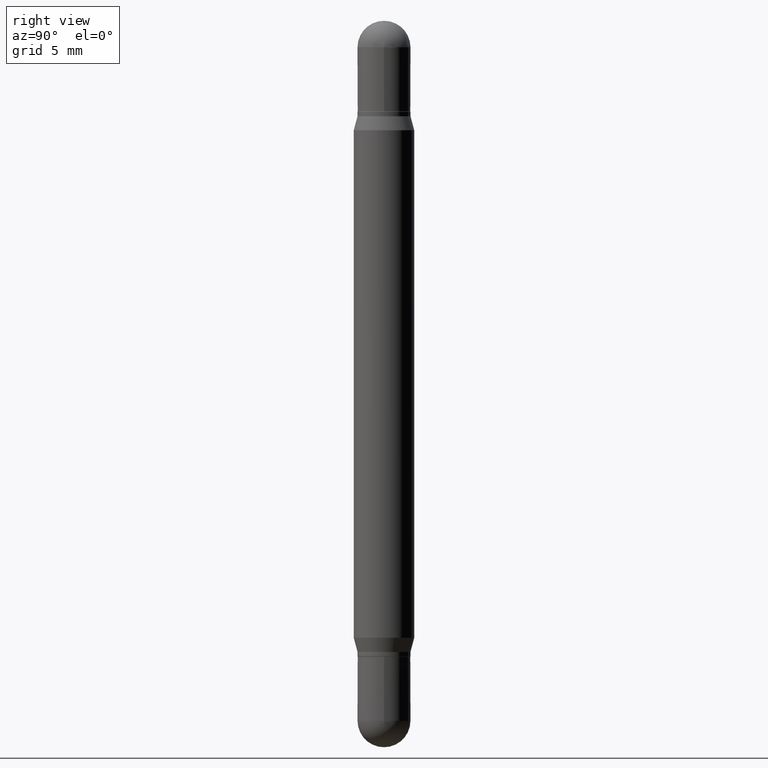
[diagram: clean part render]
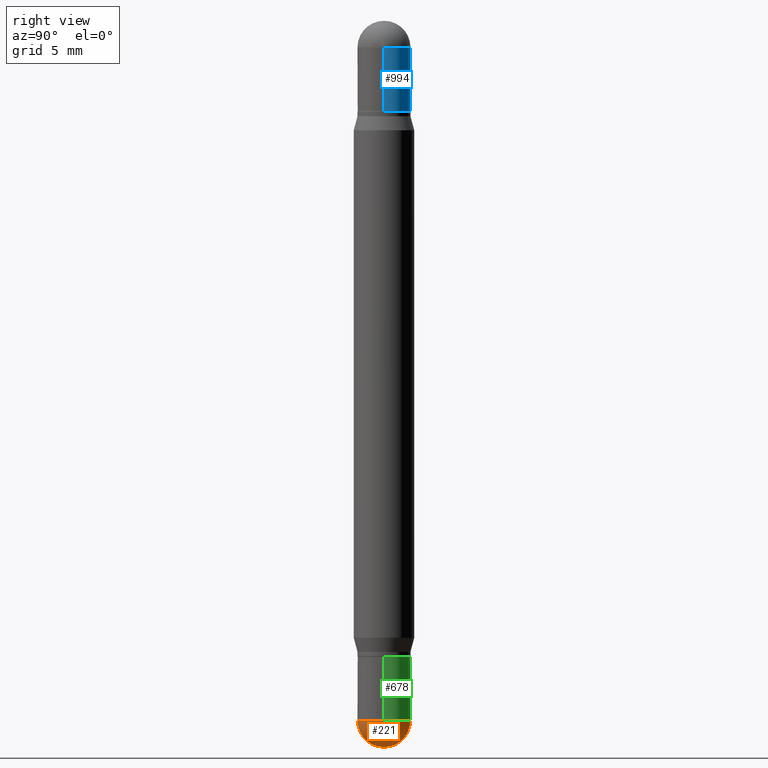
[diagram: same view with three faces highlighted in distinct colors, each labeled with its STEP entity id]
A machine part, right view with three faces highlighted in distinct colors.
Their STEP definitions:

[orange] entity #221 — the highlighted spherical surface has radius 1.3894 mm.
#6 = FACE_OUTER_BOUND ( 'NONE', #480, .T. ) ;
#76 = ORIENTED_EDGE ( 'NONE', *, *, #982, .T. ) ;
#151 = AXIS2_PLACEMENT_3D ( 'NONE', #357, #594, #846 ) ;
#159 = ORIENTED_EDGE ( 'NONE', *, *, #283, .F. ) ;
#160 = DIRECTION ( 'NONE',  ( -2.445468806185136597E-29, 3.491481338843145583E-15, 1.000000000000000000 ) ) ;
#171 = CARTESIAN_POINT ( 'NONE',  ( 3.529758305977566399E-29, -5.052936797021334001E-15, -1.445300000000000029 ) ) ;
#206 = DIRECTION ( 'NONE',  ( 1.000000000000000000, -6.982962677686259611E-15, 0.000000000000000000 ) ) ;
#221 = ADVANCED_FACE ( 'NONE', ( #6 ), #936, .T. ) ;
#226 = VERTEX_POINT ( 'NONE', #842 ) ;
#248 = DIRECTION ( 'NONE',  ( 1.000000000000000000, -6.982962677686265922E-15, 4.883557194083113462E-29 ) ) ;
#251 = EDGE_CURVE ( 'NONE', #638, #226, #958, .T. ) ;
#252 = VERTEX_POINT ( 'NONE', #326 ) ;
#283 = EDGE_CURVE ( 'NONE', #406, #252, #466, .T. ) ;
#313 = EDGE_CURVE ( 'NONE', #252, #638, #637, .T. ) ;
#326 = CARTESIAN_POINT ( 'NONE',  ( -3.819680584694040760E-16, -0.05470000000000515422, -1.445299999999999807 ) ) ;
#335 = ORIENTED_EDGE ( 'NONE', *, *, #251, .F. ) ;
#340 = ORIENTED_EDGE ( 'NONE', *, *, #313, .F. ) ;
#344 = AXIS2_PLACEMENT_3D ( 'NONE', #504, #160, #485 ) ;
#357 = CARTESIAN_POINT ( 'NONE',  ( 3.529758305977566399E-29, -5.052936797021334001E-15, -1.445300000000000029 ) ) ;
#369 = CARTESIAN_POINT ( 'NONE',  ( 3.529758305977566399E-29, -5.052936797021334001E-15, -1.445300000000000029 ) ) ;
#371 = DIRECTION ( 'NONE',  ( -2.445468806185136597E-29, 3.491481338843145583E-15, 1.000000000000000000 ) ) ;
#406 = VERTEX_POINT ( 'NONE', #1067 ) ;
#435 = CARTESIAN_POINT ( 'NONE',  ( 3.534436065579377749E-29, -5.046237979029997798E-15, -1.445300000000000029 ) ) ;
#451 = DIRECTION ( 'NONE',  ( -6.982962677686266711E-15, -1.000000000000000000, 0.000000000000000000 ) ) ;
#466 = CIRCLE ( 'NONE', #691, 0.05470000000000019291 ) ;
#480 = EDGE_LOOP ( 'NONE', ( #159, #76, #335, #340 ) ) ;
#483 = CIRCLE ( 'NONE', #151, 0.05470000000000019291 ) ;
#485 = DIRECTION ( 'NONE',  ( 1.000000000000000000, -6.982962677686259611E-15, 0.000000000000000000 ) ) ;
#504 = CARTESIAN_POINT ( 'NONE',  ( 3.534436065579377749E-29, -5.046237979029997798E-15, -1.445300000000000029 ) ) ;
#594 = DIRECTION ( 'NONE',  ( 1.000000000000000000, -7.105427357601001070E-15, 4.926315508542082329E-29 ) ) ;
#637 = CIRCLE ( 'NONE', #831, 0.05470000000000000556 ) ;
#638 = VERTEX_POINT ( 'NONE', #1089 ) ;
#691 = AXIS2_PLACEMENT_3D ( 'NONE', #369, #790, #451 ) ;
#706 = AXIS2_PLACEMENT_3D ( 'NONE', #171, #248, #744 ) ;
#744 = DIRECTION ( 'NONE',  ( -6.982962677686265922E-15, -1.000000000000000000, 4.994237648380719522E-15 ) ) ;
#790 = DIRECTION ( 'NONE',  ( -1.000000000000000000, 6.982962677686265922E-15, -4.883557194083112340E-29 ) ) ;
#831 = AXIS2_PLACEMENT_3D ( 'NONE', #435, #371, #206 ) ;
#842 = CARTESIAN_POINT ( 'NONE',  ( 3.886668764608108330E-16, 0.05469999999999505119, -1.445300000000000251 ) ) ;
#846 = DIRECTION ( 'NONE',  ( 7.105427357601001070E-15, 1.000000000000000000, 0.000000000000000000 ) ) ;
#936 = SPHERICAL_SURFACE ( 'NONE', #706, 0.05470000000000019291 ) ;
#958 = CIRCLE ( 'NONE', #344, 0.05470000000000000556 ) ;
#982 = EDGE_CURVE ( 'NONE', #406, #226, #483, .T. ) ;
#1067 = CARTESIAN_POINT ( 'NONE',  ( 3.661186569874987869E-29, -5.247270235251722876E-15, -1.500000000000000222 ) ) ;
#1089 = CARTESIAN_POINT ( 'NONE',  ( 0.05470000000000000556, -5.197244546934962984E-15, -1.445300000000000029 ) ) ;

[blue] entity #994 — the highlighted cylindrical surface (edge-blend (fillet) strip) has radius 1.3894 mm, axis along (-0, -0, -1).
#11 = AXIS2_PLACEMENT_3D ( 'NONE', #1057, #265, #949 ) ;
#24 = AXIS2_PLACEMENT_3D ( 'NONE', #415, #832, #850 ) ;
#30 = DIRECTION ( 'NONE',  ( 2.445468806185136597E-29, 3.479614466977828254E-15, 1.000000000000000000 ) ) ;
#50 = VERTEX_POINT ( 'NONE', #360 ) ;
#73 = VECTOR ( 'NONE', #137, 39.37007874015748143 ) ;
#85 = ORIENTED_EDGE ( 'NONE', *, *, #364, .F. ) ;
#105 = CARTESIAN_POINT ( 'NONE',  ( -0.05469999999999999862, -4.853052613887629372E-15, -1.500000000000000444 ) ) ;
#110 = AXIS2_PLACEMENT_3D ( 'NONE', #524, #30, #965 ) ;
#137 = DIRECTION ( 'NONE',  ( -2.445468806185136877E-29, -3.479614466977828648E-15, -1.000000000000000000 ) ) ;
#207 = EDGE_CURVE ( 'NONE', #50, #572, #367, .T. ) ;
#263 = DIRECTION ( 'NONE',  ( -2.445468806185136877E-29, -3.479614466977828648E-15, -1.000000000000000000 ) ) ;
#265 = DIRECTION ( 'NONE',  ( 2.445468806185136597E-29, 3.479614466977828254E-15, 1.000000000000000000 ) ) ;
#280 = EDGE_LOOP ( 'NONE', ( #660, #495, #85, #819, #1081 ) ) ;
#289 = VECTOR ( 'NONE', #263, 39.37007874015748143 ) ;
#292 = LINE ( 'NONE', #387, #73 ) ;
#295 = EDGE_CURVE ( 'NONE', #352, #740, #915, .T. ) ;
#298 = VERTEX_POINT ( 'NONE', #519 ) ;
#336 = DIRECTION ( 'NONE',  ( -2.445468806185136597E-29, -3.479614466977828254E-15, -1.000000000000000000 ) ) ;
#352 = VERTEX_POINT ( 'NONE', #626 ) ;
#360 = CARTESIAN_POINT ( 'NONE',  ( 3.752692404781387717E-16, 0.05469999999999989454, -0.05470000000000056067 ) ) ;
#364 = EDGE_CURVE ( 'NONE', #298, #50, #920, .T. ) ;
#367 = CIRCLE ( 'NONE', #24, 0.05470000000000000556 ) ;
#387 = CARTESIAN_POINT ( 'NONE',  ( 0.05469999999999999862, -5.610289912835170741E-15, -1.500000000000000444 ) ) ;
#415 = CARTESIAN_POINT ( 'NONE',  ( 3.534436065579377749E-29, -1.992350652426753183E-16, -0.05470000000000037332 ) ) ;
#432 = CARTESIAN_POINT ( 'NONE',  ( 0.000000000000000000, -5.228321854365732350E-15, -1.500000000000000444 ) ) ;
#441 = LINE ( 'NONE', #105, #289 ) ;
#461 = EDGE_CURVE ( 'NONE', #298, #352, #292, .T. ) ;
#495 = ORIENTED_EDGE ( 'NONE', *, *, #207, .F. ) ;
#519 = CARTESIAN_POINT ( 'NONE',  ( 0.05470000000000000556, -8.113796207026979199E-16, -0.05470000000000037332 ) ) ;
#524 = CARTESIAN_POINT ( 'NONE',  ( 3.210900542521084585E-29, -6.595880592238425060E-16, -0.1870000000000002216 ) ) ;
#572 = VERTEX_POINT ( 'NONE', #590 ) ;
#590 = CARTESIAN_POINT ( 'NONE',  ( -0.05470000000000000556, -5.414232175515625545E-17, -0.05470000000000037332 ) ) ;
#626 = CARTESIAN_POINT ( 'NONE',  ( 0.05469999999999999862, -1.041556117693281390E-15, -0.1870000000000002216 ) ) ;
#660 = ORIENTED_EDGE ( 'NONE', *, *, #1099, .F. ) ;
#676 = DIRECTION ( 'NONE',  ( 1.000000000000000000, -6.982962677686260400E-15, 0.000000000000000000 ) ) ;
#740 = VERTEX_POINT ( 'NONE', #1011 ) ;
#775 = AXIS2_PLACEMENT_3D ( 'NONE', #432, #336, #676 ) ;
#819 = ORIENTED_EDGE ( 'NONE', *, *, #461, .T. ) ;
#832 = DIRECTION ( 'NONE',  ( 2.445468806185136597E-29, 3.479614466977828254E-15, 1.000000000000000000 ) ) ;
#850 = DIRECTION ( 'NONE',  ( 1.000000000000000000, -6.982962677686268288E-15, 0.000000000000000000 ) ) ;
#852 = FACE_OUTER_BOUND ( 'NONE', #280, .T. ) ;
#863 = CYLINDRICAL_SURFACE ( 'NONE', #775, 0.05469999999999999862 ) ;
#915 = CIRCLE ( 'NONE', #110, 0.05469999999999999862 ) ;
#920 = CIRCLE ( 'NONE', #11, 0.05470000000000000556 ) ;
#949 = DIRECTION ( 'NONE',  ( 1.000000000000000000, -6.982962677686268288E-15, 0.000000000000000000 ) ) ;
#965 = DIRECTION ( 'NONE',  ( 1.000000000000000000, -6.982962677686266711E-15, 0.000000000000000000 ) ) ;
#994 = ADVANCED_FACE ( 'NONE', ( #852 ), #863, .T. ) ;
#1011 = CARTESIAN_POINT ( 'NONE',  ( -0.05469999999999999862, -5.414232175515661906E-17, -0.1870000000000002216 ) ) ;
#1057 = CARTESIAN_POINT ( 'NONE',  ( 3.534436065579377749E-29, -1.992350652426753183E-16, -0.05470000000000037332 ) ) ;
#1081 = ORIENTED_EDGE ( 'NONE', *, *, #295, .T. ) ;
#1099 = EDGE_CURVE ( 'NONE', #572, #740, #441, .T. ) ;

[green] entity #678 — the highlighted cylindrical surface (edge-blend (fillet) strip) has radius 1.3894 mm, axis along (-0, 0, 1).
#19 = CARTESIAN_POINT ( 'NONE',  ( -0.05469999999999999862, 3.886668764607747919E-16, -2.690657494369433708E-30 ) ) ;
#26 = DIRECTION ( 'NONE',  ( -2.445468806185136877E-29, 3.491481338843145188E-15, 1.000000000000000000 ) ) ;
#32 = ORIENTED_EDGE ( 'NONE', *, *, #388, .T. ) ;
#57 = DIRECTION ( 'NONE',  ( -2.445468806185136597E-29, 3.491481338843145583E-15, 1.000000000000000000 ) ) ;
#68 = VERTEX_POINT ( 'NONE', #781 ) ;
#95 = ORIENTED_EDGE ( 'NONE', *, *, #463, .F. ) ;
#96 = VECTOR ( 'NONE', #725, 39.37007874015748143 ) ;
#107 = DIRECTION ( 'NONE',  ( -2.445468806185136597E-29, 3.491481338843145583E-15, 1.000000000000000000 ) ) ;
#109 = DIRECTION ( 'NONE',  ( 1.000000000000000000, -6.982962677686259611E-15, 0.000000000000000000 ) ) ;
#126 = EDGE_LOOP ( 'NONE', ( #32, #587, #688, #95, #447 ) ) ;
#160 = DIRECTION ( 'NONE',  ( -2.445468806185136597E-29, 3.491481338843145583E-15, 1.000000000000000000 ) ) ;
#226 = VERTEX_POINT ( 'NONE', #842 ) ;
#229 = CARTESIAN_POINT ( 'NONE',  ( 0.05469999999999999862, -3.819680584694387859E-16, 2.667268696360376954E-30 ) ) ;
#251 = EDGE_CURVE ( 'NONE', #638, #226, #958, .T. ) ;
#260 = AXIS2_PLACEMENT_3D ( 'NONE', #912, #57, #785 ) ;
#344 = AXIS2_PLACEMENT_3D ( 'NONE', #504, #160, #485 ) ;
#350 = CIRCLE ( 'NONE', #434, 0.05470000000000000556 ) ;
#388 = EDGE_CURVE ( 'NONE', #226, #68, #350, .T. ) ;
#401 = FACE_OUTER_BOUND ( 'NONE', #126, .T. ) ;
#418 = CARTESIAN_POINT ( 'NONE',  ( 0.05469999999999999862, -4.966283056370488990E-15, -1.313000000000000167 ) ) ;
#434 = AXIS2_PLACEMENT_3D ( 'NONE', #882, #107, #109 ) ;
#447 = ORIENTED_EDGE ( 'NONE', *, *, #251, .T. ) ;
#463 = EDGE_CURVE ( 'NONE', #638, #696, #471, .T. ) ;
#471 = LINE ( 'NONE', #229, #96 ) ;
#485 = DIRECTION ( 'NONE',  ( 1.000000000000000000, -6.982962677686259611E-15, 0.000000000000000000 ) ) ;
#487 = VERTEX_POINT ( 'NONE', #563 ) ;
#502 = AXIS2_PLACEMENT_3D ( 'NONE', #659, #1090, #851 ) ;
#504 = CARTESIAN_POINT ( 'NONE',  ( 3.534436065579377749E-29, -5.046237979029997798E-15, -1.445300000000000029 ) ) ;
#563 = CARTESIAN_POINT ( 'NONE',  ( -0.05469999999999999862, -4.426609612004749998E-15, -1.313000000000000167 ) ) ;
#587 = ORIENTED_EDGE ( 'NONE', *, *, #795, .T. ) ;
#617 = EDGE_CURVE ( 'NONE', #696, #487, #1066, .T. ) ;
#638 = VERTEX_POINT ( 'NONE', #1089 ) ;
#659 = CARTESIAN_POINT ( 'NONE',  ( 0.000000000000000000, 0.000000000000000000, 0.000000000000000000 ) ) ;
#678 = ADVANCED_FACE ( 'NONE', ( #401 ), #766, .T. ) ;
#688 = ORIENTED_EDGE ( 'NONE', *, *, #617, .F. ) ;
#696 = VERTEX_POINT ( 'NONE', #418 ) ;
#725 = DIRECTION ( 'NONE',  ( -2.445468806185136877E-29, 3.491481338843145188E-15, 1.000000000000000000 ) ) ;
#766 = CYLINDRICAL_SURFACE ( 'NONE', #502, 0.05469999999999999862 ) ;
#778 = LINE ( 'NONE', #19, #993 ) ;
#781 = CARTESIAN_POINT ( 'NONE',  ( -0.05470000000000000556, -4.426609612004749998E-15, -1.445300000000000029 ) ) ;
#785 = DIRECTION ( 'NONE',  ( 1.000000000000000000, -6.982962677686260400E-15, 0.000000000000000000 ) ) ;
#795 = EDGE_CURVE ( 'NONE', #68, #487, #778, .T. ) ;
#842 = CARTESIAN_POINT ( 'NONE',  ( 3.886668764608108330E-16, 0.05469999999999505119, -1.445300000000000251 ) ) ;
#851 = DIRECTION ( 'NONE',  ( 1.000000000000000000, -6.982962677686266711E-15, 4.876176775795935793E-29 ) ) ;
#882 = CARTESIAN_POINT ( 'NONE',  ( 3.534436065579377749E-29, -5.046237979029997798E-15, -1.445300000000000029 ) ) ;
#912 = CARTESIAN_POINT ( 'NONE',  ( 3.210900542521084585E-29, -4.584314997901050598E-15, -1.313000000000000167 ) ) ;
#958 = CIRCLE ( 'NONE', #344, 0.05470000000000000556 ) ;
#993 = VECTOR ( 'NONE', #26, 39.37007874015748143 ) ;
#1066 = CIRCLE ( 'NONE', #260, 0.05469999999999999862 ) ;
#1089 = CARTESIAN_POINT ( 'NONE',  ( 0.05470000000000000556, -5.197244546934962984E-15, -1.445300000000000029 ) ) ;
#1090 = DIRECTION ( 'NONE',  ( -2.445468806185136597E-29, 3.491481338843145583E-15, 1.000000000000000000 ) ) ;